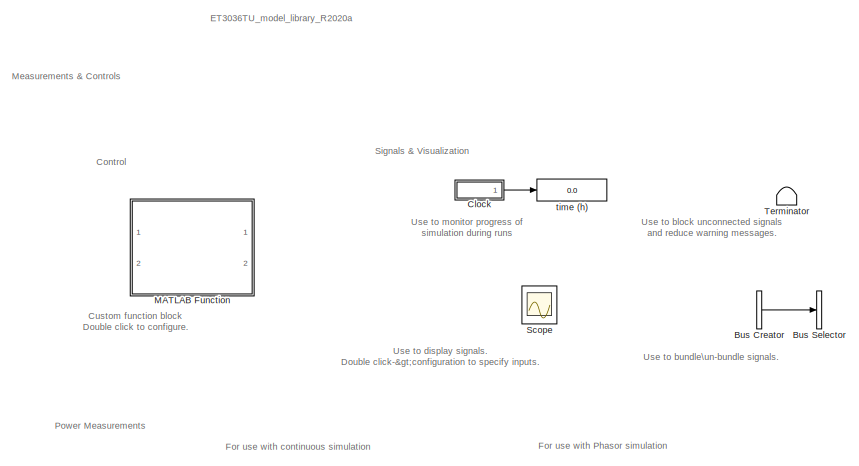
[diagram: root canvas - part 1/2, full width, top band]
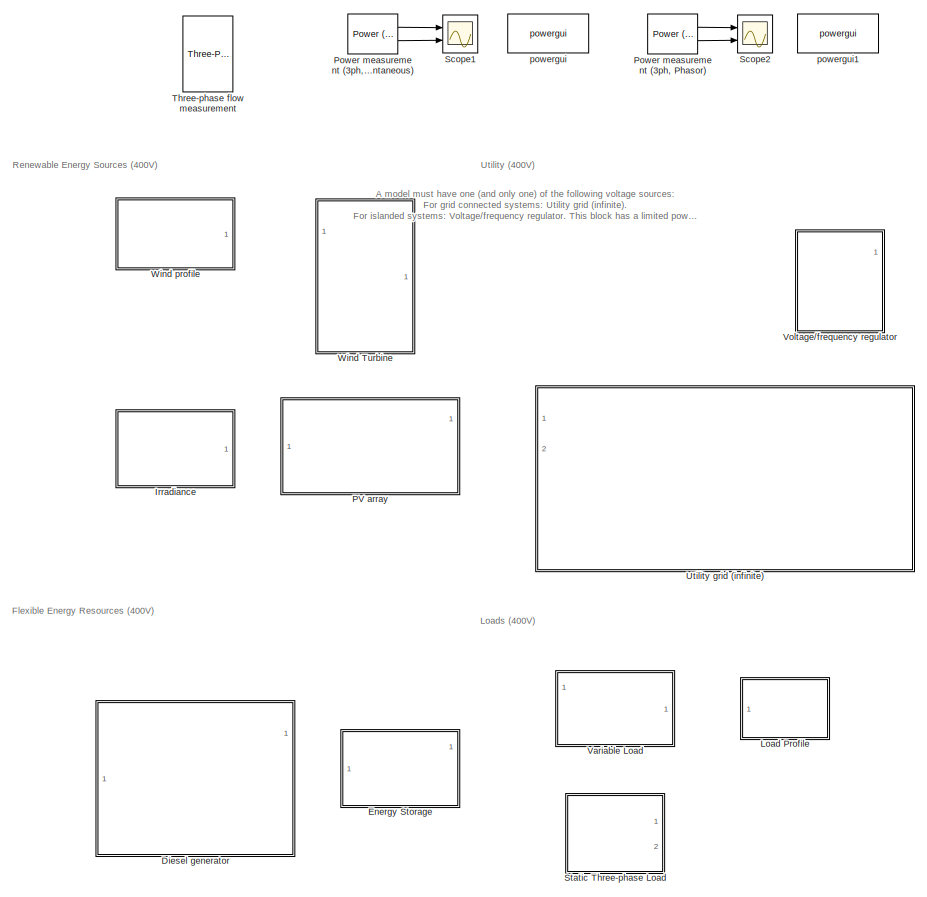
[diagram: root canvas - part 2/2, full width, bottom band]
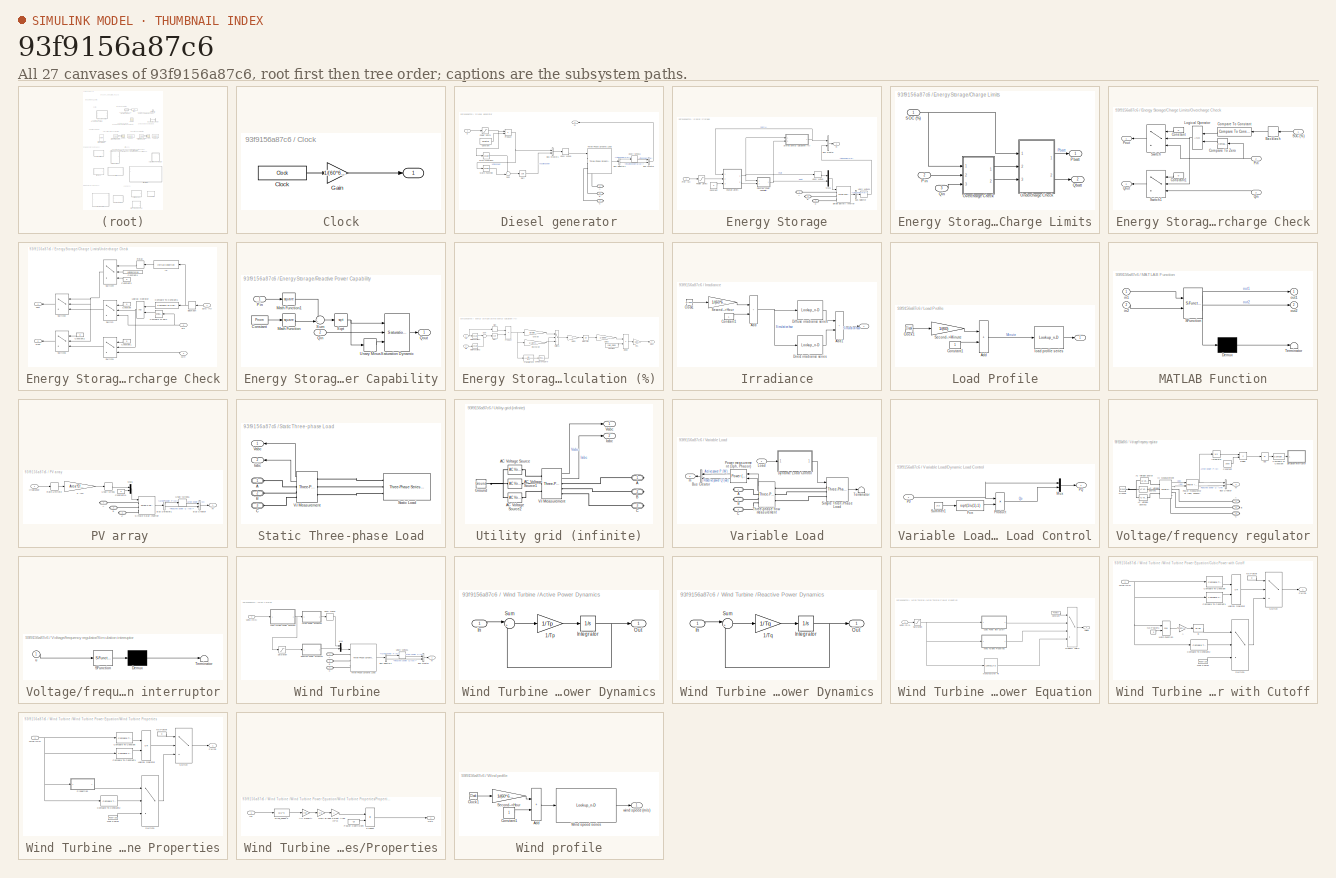
[diagram: thumbnail index - all 27 canvases of the model, root first then tree order]
MODEL slx_93f9156a87c6
KIND library
CONFIG AbsTol = auto
CONFIG EnableMultiTasking = off
CONFIG FixedStep = auto
CONFIG MaxStep = auto
CONFIG MinStep = auto
CONFIG RelTol = 1e-3
CONFIG SampleTimeConstraint = Unconstrained
CONFIG Solver = VariableStepAuto
CONFIG SolverName = VariableStepAuto
CONFIG StartTime = 0.0
CONFIG StopTime = 10.0
BLOCK [BusCreator] Bus Creator
  DisplayOption = bar
  InheritFromInputs = on
  Inputs = 2
  Ports = [2, 1]
BLOCK [BusSelector] Bus Selector
  OutputSignals = Active power P (W),Reactive power Q (var)
  Ports = [1, 2]
BLOCK [SubSystem] Clock
  Ports = [0, 1]
  RequestExecContextInheritance = off
BLOCK [Outport] Clock/ 
  VectorParamsAs1DForOutWhenUnconnected = off
BLOCK [Clock] Clock/Clock
  DisplayTime = on
BLOCK [Gain] Clock/Gain
  Gain = 1/(60*60)
BLOCK [SubSystem] Diesel generator
  Ports = [1, 1, 0, 0, 0, 0, 3]
  RequestExecContextInheritance = off
BLOCK [PMIOPort] Diesel generator/A
  Side = Right
BLOCK [PMIOPort] Diesel generator/B
  Port = 2
  Side = Right
BLOCK [BusCreator] Diesel generator/Bus Creator
  DisplayOption = bar
  InheritFromInputs = on
  Inputs = 2
  Ports = [2, 1]
BLOCK [BusCreator] Diesel generator/Bus Creator1
  DisplayOption = bar
  InheritFromInputs = on
  Inputs = 2
  NameLocation = top
  Ports = [2, 1]
BLOCK [BusSelector] Diesel generator/Bus Selector1
  OutputSignals = Active power P (W),Reactive power Q (var)
  Ports = [1, 2]
BLOCK [PMIOPort] Diesel generator/C
  Port = 3
  Side = Right
BLOCK [Constant] Diesel generator/Constant
  Value = Pfactor
BLOCK [Math] Diesel generator/Math Function
  Operator = square
  Ports = [1, 1]
  SignedPower = on
BLOCK [Math] Diesel generator/Math Function1
  Operator = square
  Ports = [1, 1]
  SignedPower = on
BLOCK [Saturate] Diesel generator/Power Limits
  LowerLimit = 0
  UpperLimit = Snom*1e6
BLOCK [Product] Diesel generator/Product
  Ports = [2, 1]
BLOCK [Inport] Diesel generator/S
BLOCK [Sqrt] Diesel generator/Sqrt
BLOCK [Sum] Diesel generator/Sum
  Inputs = +-|
  Ports = [2, 1]
BLOCK [Reference] Diesel generator/Three-Phase Dynamic Load  REF=powerlib/Elements/Three-Phase
Dynamic Load
  Ports = [1, 1, 0, 0, 0, 3]
  SourceBlock = powerlib/Elements/Three-Phase\nDynamic Load
  SourceProductBaseCode = PS
  SourceType = Three-Phase Dynamic Load
BLOCK [UnaryMinus] Diesel generator/Unary Minus
BLOCK [UnaryMinus] Diesel generator/Unary Minus1
BLOCK [Outport] Diesel generator/m
  NameLocation = top
  VectorParamsAs1DForOutWhenUnconnected = off
BLOCK [SubSystem] Energy Storage
  Ports = [1, 1, 0, 0, 0, 0, 3]
  RequestExecContextInheritance = off
BLOCK [PMIOPort] Energy Storage/A
  Side = Right
BLOCK [PMIOPort] Energy Storage/B
  Port = 2
  Side = Right
BLOCK [BusCreator] Energy Storage/Bus Creator
  DisplayOption = bar
  InheritFromInputs = on
  Inputs = 2
  Ports = [2, 1]
BLOCK [BusSelector] Energy Storage/Bus Selector
  OutputSignals = Active power P (W)
  Ports = [1, 1]
BLOCK [PMIOPort] Energy Storage/C
  Port = 3
  Side = Right
BLOCK [SubSystem] Energy Storage/Charge Limits
  Ports = [3, 2]
  RequestExecContextInheritance = off
BLOCK [SubSystem] Energy Storage/Charge Limits/Overcharge Check
  Ports = [3, 2]
  RequestExecContextInheritance = off
BLOCK [Backlash] Energy Storage/Charge Limits/Overcharge Check/Backlash
  BacklashWidth = 1e-3
  InitialOutput = Initial_kWh_pc
  ZeroCross = off
BLOCK [Reference] Energy Storage/Charge Limits/Overcharge Check/Compare To Constant  REF=simulink/Logic and Bit
Operations/Compare
To Constant
  NameLocation = top
  Ports = [1, 1]
  SourceBlock = simulink/Logic and Bit\nOperations/Compare\nTo Constant
  SourceProductBaseCode = SL
  SourceType = Compare To Constant
BLOCK [Reference] Energy Storage/Charge Limits/Overcharge Check/Compare To Zero  REF=simulink/Logic and Bit
Operations/Compare
To Zero
  Ports = [1, 1]
  SourceBlock = simulink/Logic and Bit\nOperations/Compare\nTo Zero
  SourceProductBaseCode = SL
  SourceType = Compare To Zero
BLOCK [Constant] Energy Storage/Charge Limits/Overcharge Check/Constant
  Value = 0
BLOCK [Constant] Energy Storage/Charge Limits/Overcharge Check/Constant1
  Value = 0
BLOCK [Logic] Energy Storage/Charge Limits/Overcharge Check/Logical Operator
  AllPortsSameDT = off
  OutDataTypeStr = boolean
  Ports = [2, 1]
BLOCK [Inport] Energy Storage/Charge Limits/Overcharge Check/Pin
  Port = 2
BLOCK [Outport] Energy Storage/Charge Limits/Overcharge Check/Pout
  NameLocation = top
  VectorParamsAs1DForOutWhenUnconnected = off
BLOCK [Inport] Energy Storage/Charge Limits/Overcharge Check/Qin
  Port = 3
BLOCK [Outport] Energy Storage/Charge Limits/Overcharge Check/Qout
  NameLocation = top
  Port = 2
  VectorParamsAs1DForOutWhenUnconnected = off
BLOCK [Inport] Energy Storage/Charge Limits/Overcharge Check/SOC (%)
  NameLocation = top
BLOCK [Switch] Energy Storage/Charge Limits/Overcharge Check/Switch
  Criteria = u2 ~= 0
  InputSameDT = off
  SaturateOnIntegerOverflow = off
BLOCK [Switch] Energy Storage/Charge Limits/Overcharge Check/Switch1
  Criteria = u2 ~= 0
  InputSameDT = off
  SaturateOnIntegerOverflow = off
BLOCK [Outport] Energy Storage/Charge Limits/Pbatt
  VectorParamsAs1DForOutWhenUnconnected = off
BLOCK [Inport] Energy Storage/Charge Limits/Pin
  Port = 2
BLOCK [Outport] Energy Storage/Charge Limits/Qbatt
  Port = 2
  VectorParamsAs1DForOutWhenUnconnected = off
BLOCK [Inport] Energy Storage/Charge Limits/Qin
  Port = 3
BLOCK [Inport] Energy Storage/Charge Limits/SOC (%)
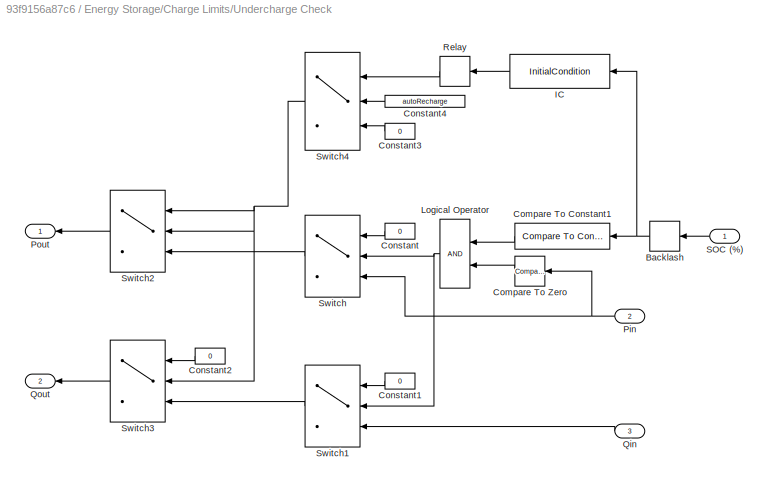
BLOCK [SubSystem] Energy Storage/Charge Limits/Undercharge Check
  Ports = [3, 2]
  RequestExecContextInheritance = off
BLOCK [Backlash] Energy Storage/Charge Limits/Undercharge Check/Backlash
  BacklashWidth = 1e-3
  InitialOutput = Initial_kWh_pc
  ZeroCross = off
BLOCK [Reference] Energy Storage/Charge Limits/Undercharge Check/Compare To Constant1  REF=simulink/Logic and Bit
Operations/Compare
To Constant
  Ports = [1, 1]
  SourceBlock = simulink/Logic and Bit\nOperations/Compare\nTo Constant
  SourceProductBaseCode = SL
  SourceType = Compare To Constant
BLOCK [Reference] Energy Storage/Charge Limits/Undercharge Check/Compare To Zero  REF=simulink/Logic and Bit
Operations/Compare
To Zero
  Ports = [1, 1]
  SourceBlock = simulink/Logic and Bit\nOperations/Compare\nTo Zero
  SourceProductBaseCode = SL
  SourceType = Compare To Zero
BLOCK [Constant] Energy Storage/Charge Limits/Undercharge Check/Constant
  Value = 0
BLOCK [Constant] Energy Storage/Charge Limits/Undercharge Check/Constant1
  Value = 0
BLOCK [Constant] Energy Storage/Charge Limits/Undercharge Check/Constant2
  Value = 0
BLOCK [Constant] Energy Storage/Charge Limits/Undercharge Check/Constant3
  Value = 0
BLOCK [Constant] Energy Storage/Charge Limits/Undercharge Check/Constant4
  Value = autoRecharge
BLOCK [InitialCondition] Energy Storage/Charge Limits/Undercharge Check/IC
  Value = RechargeSOC
BLOCK [Logic] Energy Storage/Charge Limits/Undercharge Check/Logical Operator
  AllPortsSameDT = off
  OutDataTypeStr = boolean
  Ports = [2, 1]
BLOCK [Inport] Energy Storage/Charge Limits/Undercharge Check/Pin
  Port = 2
BLOCK [Outport] Energy Storage/Charge Limits/Undercharge Check/Pout
  NameLocation = top
  VectorParamsAs1DForOutWhenUnconnected = off
BLOCK [Inport] Energy Storage/Charge Limits/Undercharge Check/Qin
  Port = 3
BLOCK [Outport] Energy Storage/Charge Limits/Undercharge Check/Qout
  NameLocation = top
  Port = 2
  VectorParamsAs1DForOutWhenUnconnected = off
BLOCK [Relay] Energy Storage/Charge Limits/Undercharge Check/Relay
  OffOutputValue = -Precharge/100*Pnom
  OffSwitchValue = LowChrgLim
  OnOutputValue = 0
  OnSwitchValue = RechargeSOC
BLOCK [Inport] Energy Storage/Charge Limits/Undercharge Check/SOC (%)
  NameLocation = top
BLOCK [Switch] Energy Storage/Charge Limits/Undercharge Check/Switch
  Criteria = u2 ~= 0
  InputSameDT = off
  SaturateOnIntegerOverflow = off
BLOCK [Switch] Energy Storage/Charge Limits/Undercharge Check/Switch1
  Criteria = u2 ~= 0
  InputSameDT = off
  SaturateOnIntegerOverflow = off
BLOCK [Switch] Energy Storage/Charge Limits/Undercharge Check/Switch2
  Criteria = u2 ~= 0
  InputSameDT = off
  SaturateOnIntegerOverflow = off
BLOCK [Switch] Energy Storage/Charge Limits/Undercharge Check/Switch3
  Criteria = u2 ~= 0
  InputSameDT = off
  SaturateOnIntegerOverflow = off
BLOCK [Switch] Energy Storage/Charge Limits/Undercharge Check/Switch4
  Criteria = u2 ~= 0
  InputSameDT = off
  SaturateOnIntegerOverflow = off
BLOCK [Constant] Energy Storage/Constant
  Value = 0
BLOCK [Mux] Energy Storage/Mux1
  DisplayOption = bar
  Inputs = 2
  Ports = [2, 1]
BLOCK [Saturate] Energy Storage/Power Limits
  LowerLimit = -Pnom
  UpperLimit = Pnom
BLOCK [Inport] Energy Storage/Pref (W)
BLOCK [SubSystem] Energy Storage/Reactive Power Capability
  Ports = [2, 1]
  RequestExecContextInheritance = off
BLOCK [Constant] Energy Storage/Reactive Power Capability/Constant
  Value = Pnom
BLOCK [Math] Energy Storage/Reactive Power Capability/Math Function
  Operator = square
  Ports = [1, 1]
  SignedPower = on
BLOCK [Math] Energy Storage/Reactive Power Capability/Math Function1
  Operator = square
  Ports = [1, 1]
  SignedPower = on
BLOCK [Inport] Energy Storage/Reactive Power Capability/Pin
BLOCK [Inport] Energy Storage/Reactive Power Capability/Qin
  Port = 2
BLOCK [Outport] Energy Storage/Reactive Power Capability/Qout
  VectorParamsAs1DForOutWhenUnconnected = off
BLOCK [Reference] Energy Storage/Reactive Power Capability/Saturation Dynamic  REF=simulink/Discontinuities/Saturation
Dynamic
  Ports = [3, 1]
  SourceBlock = simulink/Discontinuities/Saturation\nDynamic
  SourceProductBaseCode = SL
  SourceType = Saturation Dynamic
BLOCK [Sqrt] Energy Storage/Reactive Power Capability/Sqrt
BLOCK [Sum] Energy Storage/Reactive Power Capability/Sum
  Inputs = -+|
  Ports = [2, 1]
BLOCK [UnaryMinus] Energy Storage/Reactive Power Capability/Unary Minus
BLOCK [Reference] Energy Storage/Simple Battery Inverter  REF=powerlib/Elements/Three-Phase
Dynamic Load
  Ports = [1, 1, 0, 0, 0, 3]
  SourceBlock = powerlib/Elements/Three-Phase\nDynamic Load
  SourceProductBaseCode = PS
  SourceType = Three-Phase Dynamic Load
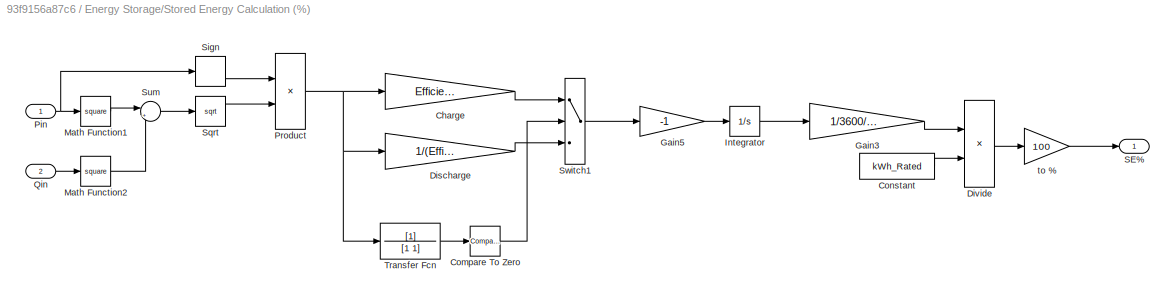
BLOCK [SubSystem] Energy Storage/Stored Energy Calculation (%)
  Ports = [2, 1]
  RequestExecContextInheritance = off
BLOCK [Gain] Energy Storage/Stored Energy Calculation (%)/Charge
  Gain = Efficiency/100
BLOCK [Reference] Energy Storage/Stored Energy Calculation (%)/Compare To Zero  REF=simulink/Logic and Bit
Operations/Compare
To Zero
  Ports = [1, 1]
  SourceBlock = simulink/Logic and Bit\nOperations/Compare\nTo Zero
  SourceProductBaseCode = SL
  SourceType = Compare To Zero
BLOCK [Constant] Energy Storage/Stored Energy Calculation (%)/Constant
  Value = kWh_Rated
BLOCK [Gain] Energy Storage/Stored Energy Calculation (%)/Discharge
  Gain = 1/(Efficiency/100)
BLOCK [Product] Energy Storage/Stored Energy Calculation (%)/Divide
  Inputs = */
  Ports = [2, 1]
BLOCK [Gain] Energy Storage/Stored Energy Calculation (%)/Gain3
  Gain = 1/3600/1e3
BLOCK [Gain] Energy Storage/Stored Energy Calculation (%)/Gain5
  Gain = -1
BLOCK [Integrator] Energy Storage/Stored Energy Calculation (%)/Integrator
  InitialCondition = (Initial_kWh_pc/100)*kWh_Rated*3600*1e3
  Ports = [1, 1]
BLOCK [Math] Energy Storage/Stored Energy Calculation (%)/Math Function1
  Operator = square
  Ports = [1, 1]
  SignedPower = on
BLOCK [Math] Energy Storage/Stored Energy Calculation (%)/Math Function2
  Operator = square
  Ports = [1, 1]
  SignedPower = on
BLOCK [Inport] Energy Storage/Stored Energy Calculation (%)/Pin
BLOCK [Product] Energy Storage/Stored Energy Calculation (%)/Product
  Ports = [2, 1]
BLOCK [Inport] Energy Storage/Stored Energy Calculation (%)/Qin
  Port = 2
BLOCK [Outport] Energy Storage/Stored Energy Calculation (%)/SE%
  VectorParamsAs1DForOutWhenUnconnected = off
BLOCK [Signum] Energy Storage/Stored Energy Calculation (%)/Sign
BLOCK [Sqrt] Energy Storage/Stored Energy Calculation (%)/Sqrt
BLOCK [Sum] Energy Storage/Stored Energy Calculation (%)/Sum
  Inputs = |++
  Ports = [2, 1]
BLOCK [Switch] Energy Storage/Stored Energy Calculation (%)/Switch1
  Criteria = u2 ~= 0
  InputSameDT = off
  SaturateOnIntegerOverflow = off
BLOCK [TransferFcn] Energy Storage/Stored Energy Calculation (%)/Transfer Fcn
  Denominator = [1 1]
BLOCK [Gain] Energy Storage/Stored Energy Calculation (%)/to %
  Gain = 100
  NameLocation = top
BLOCK [UnaryMinus] Energy Storage/Unary Minus
BLOCK [UnaryMinus] Energy Storage/Unary Minus1
BLOCK [Outport] Energy Storage/m
  VectorParamsAs1DForOutWhenUnconnected = off
BLOCK [SubSystem] Irradiance
  NameLocation = top
  Ports = [0, 1]
  RequestExecContextInheritance = off
BLOCK [Outport] Irradiance/ 
  NameLocation = top
  VectorParamsAs1DForOutWhenUnconnected = off
BLOCK [Sum] Irradiance/Add
  IconShape = rectangular
  Ports = [2, 1]
BLOCK [Sum] Irradiance/Add1
  IconShape = rectangular
  Ports = [2, 1]
BLOCK [Clock] Irradiance/Clock1
  Decimation = 1
BLOCK [Constant] Irradiance/Constant1
BLOCK [Lookup_n-D] Irradiance/Diffuse irradiance series
  BeginIndexSearchUsingPreviousIndexResult = on
  BreakpointsForDimension1 = Data.solar.hour
  InternalRulePriority = Speed
  NameLocation = top
  NumberOfTableDimensions = 1
  Ports = [1, 1]
  RndMeth = Simplest
  Table = Data.solar.diffuse
BLOCK [Lookup_n-D] Irradiance/Direct irradiance series
  BeginIndexSearchUsingPreviousIndexResult = on
  BreakpointsForDimension1 = Data.solar.hour
  InternalRulePriority = Speed
  NameLocation = top
  NumberOfTableDimensions = 1
  Ports = [1, 1]
  RndMeth = Simplest
  Table = Data.solar.direct
BLOCK [Gain] Irradiance/Second-->Hour
  Gain = 1/(60*60)
  NameLocation = top
BLOCK [SubSystem] Load Profile
  Ports = [0, 1]
  RequestExecContextInheritance = off
BLOCK [Outport] Load Profile/ 
  NameLocation = top
  VectorParamsAs1DForOutWhenUnconnected = off
BLOCK [Sum] Load Profile/Add
  IconShape = rectangular
  Ports = [2, 1]
BLOCK [Clock] Load Profile/Clock1
  Decimation = 1
BLOCK [Constant] Load Profile/Constant1
BLOCK [Gain] Load Profile/Second-->Minute
  Gain = 1/(60)
  NameLocation = top
BLOCK [Lookup_n-D] Load Profile/load profile series
  BeginIndexSearchUsingPreviousIndexResult = on
  BreakpointsForDimension1 = Data.varload.minute
  InternalRulePriority = Speed
  NameLocation = top
  NumberOfTableDimensions = 1
  Ports = [1, 1]
  RndMeth = Simplest
  Table = Data.varload.load
BLOCK [SubSystem] MATLAB Function
  ErrorFcn = Stateflow.Translate.translate
  PermitHierarchicalResolution = ExplicitOnly
  Ports = [2, 2]
  RequestExecContextInheritance = off
  SFBlockType = MATLAB Function
  TreatAsAtomicUnit = on
BLOCK [Demux] MATLAB Function/ Demux 
  Outputs = 1
  Ports = [1, 1]
BLOCK [S-Function] MATLAB Function/ SFunction 
  EnableBusSupport = off
  FunctionName = sf_sfun
  PortCounts = [2 3]
  Ports = [2, 3]
  SFcnIsStateOwnerBlock = off
  SFunctionDeploymentMode = off
  Tag = Stateflow S-Function 2
BLOCK [Terminator] MATLAB Function/ Terminator 
BLOCK [Inport] MATLAB Function/in1
BLOCK [Inport] MATLAB Function/in2
  Port = 2
BLOCK [Outport] MATLAB Function/out1
  VectorParamsAs1DForOutWhenUnconnected = off
BLOCK [Outport] MATLAB Function/out2
  Port = 2
  VectorParamsAs1DForOutWhenUnconnected = off
BLOCK [SubSystem] PV array 
  Ports = [1, 1, 0, 0, 0, 0, 3]
  RequestExecContextInheritance = off
BLOCK [PMIOPort] PV array /A
  Side = Right
BLOCK [PMIOPort] PV array /B
  Port = 2
  Side = Right
BLOCK [BusCreator] PV array /Bus Creator
  DisplayOption = bar
  InheritFromInputs = on
  Inputs = 2
  Ports = [2, 1]
BLOCK [BusSelector] PV array /Bus Selector1
  OutputSignals = Active power P (W),Reactive power Q (var)
  Ports = [1, 2]
BLOCK [PMIOPort] PV array /C
  Port = 3
  Side = Right
BLOCK [Constant] PV array /Constant11
  Value = 0
BLOCK [Inport] PV array /Irradiance
BLOCK [Mux] PV array /Mux1
  DisplayOption = bar
  Inputs = 2
  Ports = [2, 1]
BLOCK [Gain] PV array /P (W)
  Gain = Area*Efficiency
BLOCK [RateLimiter] PV array /Rate Limiter2
  FallingSlewLimit = -1e4
  RisingSlewLimit = 1e4
  SampleTimeMode = inherited
BLOCK [Reference] PV array /Simple Solar Inverter  REF=powerlib/Elements/Three-Phase
Dynamic Load
  Ports = [1, 1, 0, 0, 0, 3]
  SourceBlock = powerlib/Elements/Three-Phase\nDynamic Load
  SourceProductBaseCode = PS
  SourceType = Three-Phase Dynamic Load
BLOCK [UnaryMinus] PV array /Unary Minus
BLOCK [UnaryMinus] PV array /Unary Minus1
BLOCK [Outport] PV array /m
  VectorParamsAs1DForOutWhenUnconnected = off
BLOCK [Reference] Power measurement (3ph, Instantaneous)  REF=powerlib_meascontrol/Measurements/Power
(3ph, Instantaneous)
  Ports = [2, 2]
  SourceBlock = powerlib_meascontrol/Measurements/Power\n(3ph, Instantaneous)
  SourceProductBaseCode = PS
  SourceType = Power (3ph, Instantaneous)
BLOCK [Reference] Power measurement (3ph, Phasor)  REF=powerlib_meascontrol/Measurements/Power
(3ph, Phasor)
  Ports = [2, 2]
  SourceBlock = powerlib_meascontrol/Measurements/Power\n(3ph, Phasor)
  SourceProductBaseCode = PS
  SourceType = Power (3ph, Phasor)
BLOCK [Scope] Scope
  Floating = off
  NumInputPorts = 2
  Ports = [2]
  ScopeSpecificationString = Simulink.scopes.TimeScopeBlockCfg('CurrentConfiguration', extmgr.ConfigurationSet(extmgr.Configuration('Core','General UI',true),extmgr.Configuration('Core','Source UI',true),extmgr.Configuration('Sources','WiredSimulink',true,'DataLoggingVariableName','ScopeData2'),extmgr.Configuration('Visuals','Time Domain',true,'SerializedDisplays',{struct('MinYLimReal','-613968.135','MaxYLimReal','5525713.214...<+1470ch>
BLOCK [Scope] Scope1
  Floating = off
  NumInputPorts = 2
  Ports = [2]
  ScopeSpecificationString = Simulink.scopes.TimeScopeBlockCfg('CurrentConfiguration', extmgr.ConfigurationSet(extmgr.Configuration('Core','General UI',true),extmgr.Configuration('Core','Source UI',true),extmgr.Configuration('Sources','WiredSimulink',true,'DataLoggingVariableName','ScopeData1'),extmgr.Configuration('Visuals','Time Domain',true,'SerializedDisplays',{struct('MinYLimReal','-613968.135','MaxYLimReal','5525713.214...<+1470ch>
BLOCK [Scope] Scope2
  Floating = off
  NumInputPorts = 2
  Ports = [2]
  ScopeSpecificationString = Simulink.scopes.TimeScopeBlockCfg('CurrentConfiguration', extmgr.ConfigurationSet(extmgr.Configuration('Core','General UI',true),extmgr.Configuration('Core','Source UI',true),extmgr.Configuration('Sources','WiredSimulink',true,'DataLoggingVariableName','ScopeData2'),extmgr.Configuration('Visuals','Time Domain',true,'SerializedDisplays',{struct('MinYLimReal','-613968.135','MaxYLimReal','5525713.214...<+1470ch>
BLOCK [SubSystem] Static Three-phase Load
  Ports = [0, 2, 0, 0, 0, 3]
  RequestExecContextInheritance = off
BLOCK [PMIOPort] Static Three-phase Load/A
  Side = Left
BLOCK [PMIOPort] Static Three-phase Load/B
  Port = 2
  Side = Left
BLOCK [PMIOPort] Static Three-phase Load/C
  Port = 3
  Side = Left
BLOCK [Outport] Static Three-phase Load/Iabc
  Port = 2
  VectorParamsAs1DForOutWhenUnconnected = off
BLOCK [Reference] Static Three-phase Load/Static Load  REF=powerlib/Elements/Three-Phase
Series RLC Load
  Ports = [0, 0, 0, 0, 0, 3]
  SourceBlock = powerlib/Elements/Three-Phase\nSeries RLC Load
  SourceProductBaseCode = PS
  SourceType = Three-Phase Series RLC Load
BLOCK [Reference] Static Three-phase Load/V-I Measurement  REF=powerlib/Measurements/Three-Phase
V-I Measurement
  NameLocation = top
  Ports = [0, 2, 0, 0, 0, 3, 3]
  SourceBlock = powerlib/Measurements/Three-Phase\nV-I Measurement
  SourceProductBaseCode = PS
  SourceType = Three-Phase VI Measurement
BLOCK [Outport] Static Three-phase Load/Vabc
  VectorParamsAs1DForOutWhenUnconnected = off
BLOCK [Terminator] Terminator
BLOCK [Reference] Three-phase flow measurement  REF=powerlib/Measurements/Three-Phase
V-I Measurement
  Ports = [0, 2, 0, 0, 0, 3, 3]
  SourceBlock = powerlib/Measurements/Three-Phase\nV-I Measurement
  SourceProductBaseCode = PS
  SourceType = Three-Phase VI Measurement
BLOCK [SubSystem] Utility grid (infinite)
  Ports = [0, 2, 0, 0, 0, 0, 3]
  RequestExecContextInheritance = off
BLOCK [PMIOPort] Utility grid (infinite)/A
  Side = Right
BLOCK [Reference] Utility grid (infinite)/AC Voltage Source  REF=powerlib/Electrical
Sources/AC Voltage Source
  Ports = [0, 0, 0, 0, 0, 1, 1]
  SourceBlock = powerlib/Electrical\nSources/AC Voltage Source
  SourceProductBaseCode = PS
  SourceType = AC Voltage Source
BLOCK [Reference] Utility grid (infinite)/AC Voltage Source1  REF=powerlib/Electrical
Sources/AC Voltage Source
  Ports = [0, 0, 0, 0, 0, 1, 1]
  SourceBlock = powerlib/Electrical\nSources/AC Voltage Source
  SourceProductBaseCode = PS
  SourceType = AC Voltage Source
BLOCK [Reference] Utility grid (infinite)/AC Voltage Source2  REF=powerlib/Electrical
Sources/AC Voltage Source
  Ports = [0, 0, 0, 0, 0, 1, 1]
  SourceBlock = powerlib/Electrical\nSources/AC Voltage Source
  SourceProductBaseCode = PS
  SourceType = AC Voltage Source
BLOCK [PMIOPort] Utility grid (infinite)/B
  Port = 2
  Side = Right
BLOCK [PMIOPort] Utility grid (infinite)/C
  Port = 3
  Side = Right
BLOCK [Reference] Utility grid (infinite)/Ground  REF=powerlib/Elements/Ground
  Ports = [0, 0, 0, 0, 0, 1]
  SourceBlock = powerlib/Elements/Ground
  SourceProductBaseCode = PS
  SourceType = Ground
BLOCK [Outport] Utility grid (infinite)/Iabc
  Port = 2
  VectorParamsAs1DForOutWhenUnconnected = off
BLOCK [Reference] Utility grid (infinite)/V-I Measurement  REF=powerlib/Measurements/Three-Phase
V-I Measurement
  Ports = [0, 2, 0, 0, 0, 3, 3]
  SourceBlock = powerlib/Measurements/Three-Phase\nV-I Measurement
  SourceProductBaseCode = PS
  SourceType = Three-Phase VI Measurement
BLOCK [Outport] Utility grid (infinite)/Vabc
  VectorParamsAs1DForOutWhenUnconnected = off
BLOCK [SubSystem] Variable Load
  Ports = [1, 1, 0, 0, 0, 0, 3]
  RequestExecContextInheritance = off
BLOCK [PMIOPort] Variable Load/A
  Side = Right
BLOCK [PMIOPort] Variable Load/B
  Port = 2
  Side = Right
BLOCK [BusCreator] Variable Load/Bus Creator
  DisplayOption = bar
  InheritFromInputs = on
  Inputs = 2
  NameLocation = top
  Ports = [2, 1]
BLOCK [PMIOPort] Variable Load/C
  Port = 3
  Side = Right
BLOCK [SubSystem] Variable Load/Dynamic Load Control
  Ports = [1, 1]
  RequestExecContextInheritance = off
BLOCK [Fcn] Variable Load/Dynamic Load Control/Fcn
  Expr = sqrt(1/u(1)-1)
BLOCK [Mux] Variable Load/Dynamic Load Control/Mux
  DisplayOption = bar
  Inputs = 2
  Ports = [2, 1]
BLOCK [Inport] Variable Load/Dynamic Load Control/P0
BLOCK [Outport] Variable Load/Dynamic Load Control/PQ
  VectorParamsAs1DForOutWhenUnconnected = off
BLOCK [Product] Variable Load/Dynamic Load Control/Product
  Ports = [2, 1]
BLOCK [Constant] Variable Load/Dynamic Load Control/Summer1
  NameLocation = top
  Value = PF
BLOCK [Inport] Variable Load/Load
  NameLocation = top
BLOCK [Reference] Variable Load/Power measurement (3ph, Phasor)  REF=powerlib_meascontrol/Measurements/Power
(3ph, Phasor)
  Ports = [2, 2]
  SourceBlock = powerlib_meascontrol/Measurements/Power\n(3ph, Phasor)
  SourceProductBaseCode = PS
  SourceType = Power (3ph, Phasor)
BLOCK [Reference] Variable Load/Simple Three-Phase Load  REF=powerlib/Elements/Three-Phase
Dynamic Load
  Ports = [1, 1, 0, 0, 0, 3]
  SourceBlock = powerlib/Elements/Three-Phase\nDynamic Load
  SourceProductBaseCode = PS
  SourceType = Three-Phase Dynamic Load
BLOCK [Terminator] Variable Load/Terminator
BLOCK [Reference] Variable Load/Three-phase flow measurement  REF=powerlib/Measurements/Three-Phase
V-I Measurement
  Ports = [0, 2, 0, 0, 0, 3, 3]
  SourceBlock = powerlib/Measurements/Three-Phase\nV-I Measurement
  SourceProductBaseCode = PS
  SourceType = Three-Phase VI Measurement
BLOCK [Outport] Variable Load/m
  NameLocation = top
  VectorParamsAs1DForOutWhenUnconnected = off
BLOCK [SubSystem] Voltage//frequency regulator
  Ports = [0, 1, 0, 0, 0, 0, 3]
  RequestExecContextInheritance = off
BLOCK [PMIOPort] Voltage//frequency regulator/A
  Side = Right
BLOCK [Reference] Voltage//frequency regulator/AC Voltage Source  REF=powerlib/Electrical
Sources/AC Voltage Source
  Ports = [0, 0, 0, 0, 0, 1, 1]
  SourceBlock = powerlib/Electrical\nSources/AC Voltage Source
  SourceProductBaseCode = PS
  SourceType = AC Voltage Source
BLOCK [Reference] Voltage//frequency regulator/AC Voltage Source1  REF=powerlib/Electrical
Sources/AC Voltage Source
  Ports = [0, 0, 0, 0, 0, 1, 1]
  SourceBlock = powerlib/Electrical\nSources/AC Voltage Source
  SourceProductBaseCode = PS
  SourceType = AC Voltage Source
BLOCK [Reference] Voltage//frequency regulator/AC Voltage Source2  REF=powerlib/Electrical
Sources/AC Voltage Source
  Ports = [0, 0, 0, 0, 0, 1, 1]
  SourceBlock = powerlib/Electrical\nSources/AC Voltage Source
  SourceProductBaseCode = PS
  SourceType = AC Voltage Source
BLOCK [Abs] Voltage//frequency regulator/Abs
  SaturateOnIntegerOverflow = off
BLOCK [PMIOPort] Voltage//frequency regulator/B
  Port = 2
  Side = Right
BLOCK [BusCreator] Voltage//frequency regulator/Bus Creator
  DisplayOption = bar
  InheritFromInputs = on
  Inputs = 2
  Ports = [2, 1]
BLOCK [PMIOPort] Voltage//frequency regulator/C
  Port = 3
  Side = Right
BLOCK [Reference] Voltage//frequency regulator/Compare To Constant  REF=simulink/Logic and Bit
Operations/Compare
To Constant
  Ports = [1, 1]
  SourceBlock = simulink/Logic and Bit\nOperations/Compare\nTo Constant
  SourceProductBaseCode = SL
  SourceType = Compare To Constant
BLOCK [Constant] Voltage//frequency regulator/Constant
  Value = 3600
BLOCK [Product] Voltage//frequency regulator/Divide
  Inputs = */
  Ports = [2, 1]
BLOCK [Reference] Voltage//frequency regulator/Ground  REF=powerlib/Elements/Ground
  Ports = [0, 0, 0, 0, 0, 1]
  SourceBlock = powerlib/Elements/Ground
  SourceProductBaseCode = PS
  SourceType = Ground
BLOCK [Integrator] Voltage//frequency regulator/Integrator
  Ports = [1, 1]
BLOCK [Reference] Voltage//frequency regulator/Power measurement (3ph, Phasor)  REF=powerlib_meascontrol/Measurements/Power
(3ph, Phasor)
  Ports = [2, 2]
  SourceBlock = powerlib_meascontrol/Measurements/Power\n(3ph, Phasor)
  SourceProductBaseCode = PS
  SourceType = Power (3ph, Phasor)
BLOCK [SubSystem] Voltage//frequency regulator/Simulation interruptor
  ErrorFcn = Stateflow.Translate.translate
  PermitHierarchicalResolution = ExplicitOnly
  Ports = [1]
  RequestExecContextInheritance = off
  SFBlockType = MATLAB Function
  TreatAsAtomicUnit = on
BLOCK [Demux] Voltage//frequency regulator/Simulation interruptor/ Demux 
  Outputs = 1
  Ports = [1, 1]
BLOCK [S-Function] Voltage//frequency regulator/Simulation interruptor/ SFunction 
  EnableBusSupport = off
  FunctionName = sf_sfun
  PortCounts = [1 1]
  Ports = [1, 1]
  SFcnIsStateOwnerBlock = off
  SFunctionDeploymentMode = off
  Tag = Stateflow S-Function 1
BLOCK [Terminator] Voltage//frequency regulator/Simulation interruptor/ Terminator 
BLOCK [Inport] Voltage//frequency regulator/Simulation interruptor/u
BLOCK [Reference] Voltage//frequency regulator/V-I Measurement  REF=powerlib/Measurements/Three-Phase
V-I Measurement
  Ports = [0, 2, 0, 0, 0, 3, 3]
  SourceBlock = powerlib/Measurements/Three-Phase\nV-I Measurement
  SourceProductBaseCode = PS
  SourceType = Three-Phase VI Measurement
BLOCK [Outport] Voltage//frequency regulator/m
BLOCK [SubSystem] Wind Turbine 
  Ports = [1, 1, 0, 0, 0, 3]
  RequestExecContextInheritance = off
BLOCK [PMIOPort] Wind Turbine /A
  Side = Left
BLOCK [SubSystem] Wind Turbine /Active Power Dynamics
  NameLocation = top
  Ports = [1, 1]
  RequestExecContextInheritance = off
  VariantControl = T6NotZero
BLOCK [Gain] Wind Turbine /Active Power Dynamics/1//Tp
  Gain = 1/Tp
  NameLocation = top
BLOCK [Inport] Wind Turbine /Active Power Dynamics/In
BLOCK [Integrator] Wind Turbine /Active Power Dynamics/Integrator
  Ports = [1, 1]
BLOCK [Outport] Wind Turbine /Active Power Dynamics/Out
  VectorParamsAs1DForOutWhenUnconnected = off
BLOCK [Sum] Wind Turbine /Active Power Dynamics/Sum
  Inputs = |+-
  Ports = [2, 1]
BLOCK [PMIOPort] Wind Turbine /B
  Port = 2
  Side = Left
BLOCK [BusCreator] Wind Turbine /Bus Creator
  DisplayOption = bar
  InheritFromInputs = on
  Inputs = 2
  Ports = [2, 1]
BLOCK [BusSelector] Wind Turbine /Bus Selector1
  OutputSignals = Active power P (W),Reactive power Q (var)
  Ports = [1, 2]
BLOCK [PMIOPort] Wind Turbine /C
  Port = 3
  Side = Left
BLOCK [Mux] Wind Turbine /Mux
  DisplayOption = bar
  Inputs = 2
  Ports = [2, 1]
BLOCK [SubSystem] Wind Turbine /Reactive Power Dynamics
  NameLocation = top
  Ports = [1, 1]
  RequestExecContextInheritance = off
  VariantControl = T6NotZero
BLOCK [Gain] Wind Turbine /Reactive Power Dynamics/1//Tq
  Gain = 1/Tq
  NameLocation = top
BLOCK [Inport] Wind Turbine /Reactive Power Dynamics/In
BLOCK [Integrator] Wind Turbine /Reactive Power Dynamics/Integrator
  Ports = [1, 1]
BLOCK [Outport] Wind Turbine /Reactive Power Dynamics/Out
  VectorParamsAs1DForOutWhenUnconnected = off
BLOCK [Sum] Wind Turbine /Reactive Power Dynamics/Sum
  Inputs = |+-
  Ports = [2, 1]
BLOCK [Saturate] Wind Turbine /Saturation
  LowerLimit = -Qmax
  UpperLimit = Qmax
BLOCK [Reference] Wind Turbine /Three-Phase Dynamic Load  REF=powerlib/Elements/Three-Phase
Dynamic Load
  Ports = [1, 1, 0, 0, 0, 3]
  SourceBlock = powerlib/Elements/Three-Phase\nDynamic Load
  SourceProductBaseCode = PS
  SourceType = Three-Phase Dynamic Load
BLOCK [UnaryMinus] Wind Turbine /Unary Minus
BLOCK [UnaryMinus] Wind Turbine /Unary Minus1
BLOCK [Inport] Wind Turbine /Wind (m//s)
BLOCK [SubSystem] Wind Turbine /Wind Turbine Power Equation
  Ports = [1, 1]
  RequestExecContextInheritance = off
BLOCK [Constant] Wind Turbine /Wind Turbine Power Equation/Constant
  Value = Pselect
BLOCK [SubSystem] Wind Turbine /Wind Turbine Power Equation/Cubic Power with Cutoff
  Ports = [1, 1]
  RequestExecContextInheritance = off
BLOCK [Gain] Wind Turbine /Wind Turbine Power Equation/Cubic Power with Cutoff/A
  Gain = (Pnom*1e3)/(Unom^3 - Umin^3)
BLOCK [Bias] Wind Turbine /Wind Turbine Power Equation/Cubic Power with Cutoff/B
  Bias = -(Pnom*1e3)/(Unom^3 - Umin^3)*Umin^3
  SaturateOnIntegerOverflow = off
BLOCK [Reference] Wind Turbine /Wind Turbine Power Equation/Cubic Power with Cutoff/Compare To Constant  REF=simulink/Logic and Bit
Operations/Compare
To Constant
  Ports = [1, 1]
  SourceBlock = simulink/Logic and Bit\nOperations/Compare\nTo Constant
  SourceProductBaseCode = SL
  SourceType = Compare To Constant
BLOCK [Reference] Wind Turbine /Wind Turbine Power Equation/Cubic Power with Cutoff/Compare To Constant1  REF=simulink/Logic and Bit
Operations/Compare
To Constant
  Ports = [1, 1]
  SourceBlock = simulink/Logic and Bit\nOperations/Compare\nTo Constant
  SourceProductBaseCode = SL
  SourceType = Compare To Constant
BLOCK [Reference] Wind Turbine /Wind Turbine Power Equation/Cubic Power with Cutoff/Compare To Constant2  REF=simulink/Logic and Bit
Operations/Compare
To Constant
  Ports = [1, 1]
  SourceBlock = simulink/Logic and Bit\nOperations/Compare\nTo Constant
  SourceProductBaseCode = SL
  SourceType = Compare To Constant
BLOCK [Logic] Wind Turbine /Wind Turbine Power Equation/Cubic Power with Cutoff/Logical Operator
  AllPortsSameDT = off
  Operator = OR
  OutDataTypeStr = boolean
  Ports = [2, 1]
BLOCK [Math] Wind Turbine /Wind Turbine Power Equation/Cubic Power with Cutoff/Math Function
  Operator = pow
  Ports = [2, 1]
  SignedPower = on
BLOCK [Constant] Wind Turbine /Wind Turbine Power Equation/Cubic Power with Cutoff/Max Power
  NameLocation = top
  Value = Pnom*1e3
BLOCK [Constant] Wind Turbine /Wind Turbine Power Equation/Cubic Power with Cutoff/No Power
  NameLocation = top
  Value = 0
BLOCK [Constant] Wind Turbine /Wind Turbine Power Equation/Cubic Power with Cutoff/No Power1
  NameLocation = top
  Value = 3
BLOCK [Outport] Wind Turbine /Wind Turbine Power Equation/Cubic Power with Cutoff/Pwind
  VectorParamsAs1DForOutWhenUnconnected = off
BLOCK [Switch] Wind Turbine /Wind Turbine Power Equation/Cubic Power with Cutoff/Switch
  Criteria = u2 ~= 0
  InputSameDT = off
  SaturateOnIntegerOverflow = off
  ZeroCross = off
BLOCK [Switch] Wind Turbine /Wind Turbine Power Equation/Cubic Power with Cutoff/Switch1
  Criteria = u2 ~= 0
  InputSameDT = off
  SaturateOnIntegerOverflow = off
  ZeroCross = off
BLOCK [Inport] Wind Turbine /Wind Turbine Power Equation/Cubic Power with Cutoff/Wind (m//s)
BLOCK [Lookup_n-D] Wind Turbine /Wind Turbine Power Equation/Manufacturer Fit
  BreakpointsForDimension1 = Uvec
  ExtrapMethod = Clip
  InternalRulePriority = Speed
  NumberOfTableDimensions = 1
  Ports = [1, 1]
  RndMeth = Simplest
  Table = Pvec
BLOCK [MultiPortSwitch] Wind Turbine /Wind Turbine Power Equation/Multiport Switch
  InputSameDT = off
  Ports = [4, 1]
  SaturateOnIntegerOverflow = off
BLOCK [Outport] Wind Turbine /Wind Turbine Power Equation/Pwind
  VectorParamsAs1DForOutWhenUnconnected = off
BLOCK [Saturate] Wind Turbine /Wind Turbine Power Equation/Saturation
  AttributesFormatString = %<UpperLimit>\n%<LowerLimit>
  LowerLimit = 0
  UpperLimit = inf
  ZeroCross = off
BLOCK [Inport] Wind Turbine /Wind Turbine Power Equation/Wind (m//s)
BLOCK [SubSystem] Wind Turbine /Wind Turbine Power Equation/Wind Turbine Properties
  Ports = [1, 1]
  RequestExecContextInheritance = off
BLOCK [Reference] Wind Turbine /Wind Turbine Power Equation/Wind Turbine Properties/Compare To Constant  REF=simulink/Logic and Bit
Operations/Compare
To Constant
  Ports = [1, 1]
  SourceBlock = simulink/Logic and Bit\nOperations/Compare\nTo Constant
  SourceProductBaseCode = SL
  SourceType = Compare To Constant
BLOCK [Reference] Wind Turbine /Wind Turbine Power Equation/Wind Turbine Properties/Compare To Constant1  REF=simulink/Logic and Bit
Operations/Compare
To Constant
  Ports = [1, 1]
  SourceBlock = simulink/Logic and Bit\nOperations/Compare\nTo Constant
  SourceProductBaseCode = SL
  SourceType = Compare To Constant
BLOCK [Reference] Wind Turbine /Wind Turbine Power Equation/Wind Turbine Properties/Compare To Constant2  REF=simulink/Logic and Bit
Operations/Compare
To Constant
  Ports = [1, 1]
  SourceBlock = simulink/Logic and Bit\nOperations/Compare\nTo Constant
  SourceProductBaseCode = SL
  SourceType = Compare To Constant
BLOCK [Logic] Wind Turbine /Wind Turbine Power Equation/Wind Turbine Properties/Logical Operator
  AllPortsSameDT = off
  Operator = OR
  OutDataTypeStr = boolean
  Ports = [2, 1]
BLOCK [Constant] Wind Turbine /Wind Turbine Power Equation/Wind Turbine Properties/Max Power
  NameLocation = top
  Value = Pnom*1e3
BLOCK [Constant] Wind Turbine /Wind Turbine Power Equation/Wind Turbine Properties/No Power
  NameLocation = top
  Value = 0
BLOCK [SubSystem] Wind Turbine /Wind Turbine Power Equation/Wind Turbine Properties/Properties
  Ports = [1, 1]
  RequestExecContextInheritance = off
BLOCK [Gain] Wind Turbine /Wind Turbine Power Equation/Wind Turbine Properties/Properties/Air Density
  Gain = rho
BLOCK [Gain] Wind Turbine /Wind Turbine Power Equation/Wind Turbine Properties/Properties/Blade Swept Area (m^2)
  Gain = A
BLOCK [Gain] Wind Turbine /Wind Turbine Power Equation/Wind Turbine Properties/Properties/Gain
  Gain = 1/2
BLOCK [Inport] Wind Turbine /Wind Turbine Power Equation/Wind Turbine Properties/Properties/In1
BLOCK [Outport] Wind Turbine /Wind Turbine Power Equation/Wind Turbine Properties/Properties/Out1
  VectorParamsAs1DForOutWhenUnconnected = off
BLOCK [Constant] Wind Turbine /Wind Turbine Power Equation/Wind Turbine Properties/Properties/Power Coefficient
  Value = Cp
BLOCK [Product] Wind Turbine /Wind Turbine Power Equation/Wind Turbine Properties/Properties/Product 
  OutDataTypeStr = Inherit: Same as first input
  Ports = [2, 1]
  SaturateOnIntegerOverflow = on
BLOCK [Fcn] Wind Turbine /Wind Turbine Power Equation/Wind Turbine Properties/Properties/wind_speed^3
  Expr = u(1)^3
BLOCK [Outport] Wind Turbine /Wind Turbine Power Equation/Wind Turbine Properties/Pwind
  VectorParamsAs1DForOutWhenUnconnected = off
BLOCK [Switch] Wind Turbine /Wind Turbine Power Equation/Wind Turbine Properties/Switch
  Criteria = u2 ~= 0
  InputSameDT = off
  SaturateOnIntegerOverflow = off
  ZeroCross = off
BLOCK [Switch] Wind Turbine /Wind Turbine Power Equation/Wind Turbine Properties/Switch1
  Criteria = u2 ~= 0
  InputSameDT = off
  SaturateOnIntegerOverflow = off
  ZeroCross = off
BLOCK [Inport] Wind Turbine /Wind Turbine Power Equation/Wind Turbine Properties/Wind (m//s)
BLOCK [Outport] Wind Turbine /m
  VectorParamsAs1DForOutWhenUnconnected = off
BLOCK [SubSystem] Wind profile
  Ports = [0, 1]
  RequestExecContextInheritance = off
BLOCK [Sum] Wind profile/Add
  IconShape = rectangular
  Ports = [2, 1]
BLOCK [Clock] Wind profile/Clock1
  Decimation = 1
BLOCK [Constant] Wind profile/Constant1
  NameLocation = top
BLOCK [Gain] Wind profile/Second-->Hour
  Gain = 1/(60*60)
  NameLocation = top
BLOCK [Lookup_n-D] Wind profile/Wind speed series
  BeginIndexSearchUsingPreviousIndexResult = on
  BreakpointsForDimension1 = Data.wind.hour
  ExtrapMethod = Clip
  InternalRulePriority = Speed
  NumberOfTableDimensions = 1
  Ports = [1, 1]
  RndMeth = Simplest
  Table = Data.wind.speed
  UseLastTableValue = on
BLOCK [Outport] Wind profile/wind speed (m//s)
  IconDisplay = Port number and signal name
  VectorParamsAs1DForOutWhenUnconnected = off
BLOCK [Reference] powergui  REF=powerlib/powergui
  Ports = []
  Priority = 1
  SourceBlock = powerlib/powergui
  SourceProductBaseCode = PS
  SourceType = PSB option menu block
BLOCK [Reference] powergui1  REF=powerlib/powergui
  Ports = []
  Priority = 1
  SourceBlock = powerlib/powergui
  SourceProductBaseCode = PS
  SourceType = PSB option menu block
BLOCK [Display] time (h)
  Decimation = 1
  Format = bank
  Ports = [1]
ANNOTATION (root): ET3036TU_model_library_R2020a
ANNOTATION (root): A model must have one (and only one) of the following voltage sources: For grid connected systems : Utility grid (infinite). For islanded systems : Voltage/frequency regulator. This block has a limited power/energy capacity and will stop the simulation if this is exceeded.
ANNOTATION (root): Custom function block Double click to configure.
ANNOTATION (root): Use to block unconnected signals and reduce warning messages.
ANNOTATION (root): Use to display signals. Double click->configuration to specify inputs.
ANNOTATION (root): Use to monitor progress of simulation during runs
ANNOTATION (root): Control
ANNOTATION (root): Flexible Energy Resources (400V)
ANNOTATION (root): For use with Phasor simulation
ANNOTATION (root): For use with continuous simulation
ANNOTATION (root): Loads (400V)
ANNOTATION (root): Measurements & Controls
ANNOTATION (root): Power Measurements
ANNOTATION (root): Renewable Energy Sources (400V)
ANNOTATION (root): Signals & Visualization
ANNOTATION (root): Use to bundle\un-bundle signals.
ANNOTATION (root): Utility (400V)
LINE Bus Creator:1 -> Bus Selector:1
LINE Clock/Clock:1 -> Clock/Gain:1
LINE Clock/Gain:1 -> Clock/ :1
LINE Clock:1 -> time (h):1
LINE Diesel generator/Bus Creator1:1 -> Diesel generator/Unary Minus:1
LINE Diesel generator/Bus Creator:1 -> Diesel generator/m:1
LINE Diesel generator/Bus Selector1:1 -> Diesel generator/Unary Minus1:1
LINE Diesel generator/Bus Selector1:2 -> Diesel generator/Bus Creator:2
LINE Diesel generator/Constant:1 -> Diesel generator/Product:2
LINE Diesel generator/Math Function1:1 -> Diesel generator/Sum:1
LINE Diesel generator/Math Function:1 -> Diesel generator/Sum:2
NET Diesel generator/Power Limits:1 -> Diesel generator/Math Function1:1, Diesel generator/Product:1
NET Diesel generator/Product:1 -> Diesel generator/Bus Creator1:1, Diesel generator/Math Function:1
LINE Diesel generator/S:1 -> Diesel generator/Power Limits:1
LINE Diesel generator/Sqrt:1 -> Diesel generator/Bus Creator1:2
LINE Diesel generator/Sum:1 -> Diesel generator/Sqrt:1
LINE Diesel generator/Three-Phase Dynamic Load:1 -> Diesel generator/Bus Selector1:1
LINE Diesel generator/Unary Minus1:1 -> Diesel generator/Bus Creator:1
LINE Diesel generator/Unary Minus:1 -> Diesel generator/Three-Phase Dynamic Load:1
LINE Energy Storage/Bus Creator:1 -> Energy Storage/m:1
LINE Energy Storage/Bus Selector:1 -> Energy Storage/Unary Minus1:1
LINE Energy Storage/Charge Limits/Overcharge Check/Backlash:1 -> Energy Storage/Charge Limits/Overcharge Check/Compare To Constant:1
LINE Energy Storage/Charge Limits/Overcharge Check/Compare To Constant:1 -> Energy Storage/Charge Limits/Overcharge Check/Logical Operator:1
LINE Energy Storage/Charge Limits/Overcharge Check/Compare To Zero:1 -> Energy Storage/Charge Limits/Overcharge Check/Logical Operator:2
LINE Energy Storage/Charge Limits/Overcharge Check/Constant1:1 -> Energy Storage/Charge Limits/Overcharge Check/Switch1:1
LINE Energy Storage/Charge Limits/Overcharge Check/Constant:1 -> Energy Storage/Charge Limits/Overcharge Check/Switch:1
NET Energy Storage/Charge Limits/Overcharge Check/Logical Operator:1 -> Energy Storage/Charge Limits/Overcharge Check/Switch1:2, Energy Storage/Charge Limits/Overcharge Check/Switch:2
NET Energy Storage/Charge Limits/Overcharge Check/Pin:1 -> Energy Storage/Charge Limits/Overcharge Check/Compare To Zero:1, Energy Storage/Charge Limits/Overcharge Check/Switch:3
LINE Energy Storage/Charge Limits/Overcharge Check/Qin:1 -> Energy Storage/Charge Limits/Overcharge Check/Switch1:3
LINE Energy Storage/Charge Limits/Overcharge Check/SOC (%):1 -> Energy Storage/Charge Limits/Overcharge Check/Backlash:1
LINE Energy Storage/Charge Limits/Overcharge Check/Switch1:1 -> Energy Storage/Charge Limits/Overcharge Check/Qout:1
LINE Energy Storage/Charge Limits/Overcharge Check/Switch:1 -> Energy Storage/Charge Limits/Overcharge Check/Pout:1
LINE Energy Storage/Charge Limits/Overcharge Check:1 -> Energy Storage/Charge Limits/Undercharge Check:2
LINE Energy Storage/Charge Limits/Overcharge Check:2 -> Energy Storage/Charge Limits/Undercharge Check:3
LINE Energy Storage/Charge Limits/Pin:1 -> Energy Storage/Charge Limits/Overcharge Check:2
LINE Energy Storage/Charge Limits/Qin:1 -> Energy Storage/Charge Limits/Overcharge Check:3
NET Energy Storage/Charge Limits/SOC (%):1 -> Energy Storage/Charge Limits/Overcharge Check:1, Energy Storage/Charge Limits/Undercharge Check:1
NET Energy Storage/Charge Limits/Undercharge Check/Backlash:1 -> Energy Storage/Charge Limits/Undercharge Check/Compare To Constant1:1, Energy Storage/Charge Limits/Undercharge Check/IC:1
LINE Energy Storage/Charge Limits/Undercharge Check/Compare To Constant1:1 -> Energy Storage/Charge Limits/Undercharge Check/Logical Operator:1
LINE Energy Storage/Charge Limits/Undercharge Check/Compare To Zero:1 -> Energy Storage/Charge Limits/Undercharge Check/Logical Operator:2
LINE Energy Storage/Charge Limits/Undercharge Check/Constant1:1 -> Energy Storage/Charge Limits/Undercharge Check/Switch1:1
LINE Energy Storage/Charge Limits/Undercharge Check/Constant2:1 -> Energy Storage/Charge Limits/Undercharge Check/Switch3:1
LINE Energy Storage/Charge Limits/Undercharge Check/Constant3:1 -> Energy Storage/Charge Limits/Undercharge Check/Switch4:3
LINE Energy Storage/Charge Limits/Undercharge Check/Constant4:1 -> Energy Storage/Charge Limits/Undercharge Check/Switch4:2
LINE Energy Storage/Charge Limits/Undercharge Check/Constant:1 -> Energy Storage/Charge Limits/Undercharge Check/Switch:1
LINE Energy Storage/Charge Limits/Undercharge Check/IC:1 -> Energy Storage/Charge Limits/Undercharge Check/Relay:1
NET Energy Storage/Charge Limits/Undercharge Check/Logical Operator:1 -> Energy Storage/Charge Limits/Undercharge Check/Switch1:2, Energy Storage/Charge Limits/Undercharge Check/Switch:2
NET Energy Storage/Charge Limits/Undercharge Check/Pin:1 -> Energy Storage/Charge Limits/Undercharge Check/Compare To Zero:1, Energy Storage/Charge Limits/Undercharge Check/Switch:3
LINE Energy Storage/Charge Limits/Undercharge Check/Qin:1 -> Energy Storage/Charge Limits/Undercharge Check/Switch1:3
LINE Energy Storage/Charge Limits/Undercharge Check/Relay:1 -> Energy Storage/Charge Limits/Undercharge Check/Switch4:1
LINE Energy Storage/Charge Limits/Undercharge Check/SOC (%):1 -> Energy Storage/Charge Limits/Undercharge Check/Backlash:1
LINE Energy Storage/Charge Limits/Undercharge Check/Switch1:1 -> Energy Storage/Charge Limits/Undercharge Check/Switch3:3
LINE Energy Storage/Charge Limits/Undercharge Check/Switch2:1 -> Energy Storage/Charge Limits/Undercharge Check/Pout:1
LINE Energy Storage/Charge Limits/Undercharge Check/Switch3:1 -> Energy Storage/Charge Limits/Undercharge Check/Qout:1
NET Energy Storage/Charge Limits/Undercharge Check/Switch4:1 -> Energy Storage/Charge Limits/Undercharge Check/Switch2:1, Energy Storage/Charge Limits/Undercharge Check/Switch2:2, Energy Storage/Charge Limits/Undercharge Check/Switch3:2
LINE Energy Storage/Charge Limits/Undercharge Check/Switch:1 -> Energy Storage/Charge Limits/Undercharge Check/Switch2:3
LINE Energy Storage/Charge Limits/Undercharge Check:1 -> Energy Storage/Charge Limits/Pbatt:1
LINE Energy Storage/Charge Limits/Undercharge Check:2 -> Energy Storage/Charge Limits/Qbatt:1
NET Energy Storage/Charge Limits:1 -> Energy Storage/Reactive Power Capability:1, Energy Storage/Stored Energy Calculation (%):1, Energy Storage/Unary Minus:1
LINE Energy Storage/Charge Limits:2 -> Energy Storage/Reactive Power Capability:2
LINE Energy Storage/Constant:1 -> Energy Storage/Charge Limits:3
LINE Energy Storage/Mux1:1 -> Energy Storage/Simple Battery Inverter:1
LINE Energy Storage/Power Limits:1 -> Energy Storage/Charge Limits:2
LINE Energy Storage/Pref (W):1 -> Energy Storage/Power Limits:1
LINE Energy Storage/Reactive Power Capability/Constant:1 -> Energy Storage/Reactive Power Capability/Math Function:1
LINE Energy Storage/Reactive Power Capability/Math Function1:1 -> Energy Storage/Reactive Power Capability/Sum:1
LINE Energy Storage/Reactive Power Capability/Math Function:1 -> Energy Storage/Reactive Power Capability/Sum:2
LINE Energy Storage/Reactive Power Capability/Pin:1 -> Energy Storage/Reactive Power Capability/Math Function1:1
LINE Energy Storage/Reactive Power Capability/Qin:1 -> Energy Storage/Reactive Power Capability/Saturation Dynamic:2
LINE Energy Storage/Reactive Power Capability/Saturation Dynamic:1 -> Energy Storage/Reactive Power Capability/Qout:1
NET Energy Storage/Reactive Power Capability/Sqrt:1 -> Energy Storage/Reactive Power Capability/Saturation Dynamic:1, Energy Storage/Reactive Power Capability/Unary Minus:1
LINE Energy Storage/Reactive Power Capability/Sum:1 -> Energy Storage/Reactive Power Capability/Sqrt:1
LINE Energy Storage/Reactive Power Capability/Unary Minus:1 -> Energy Storage/Reactive Power Capability/Saturation Dynamic:3
NET Energy Storage/Reactive Power Capability:1 -> Energy Storage/Mux1:2, Energy Storage/Stored Energy Calculation (%):2
LINE Energy Storage/Simple Battery Inverter:1 -> Energy Storage/Bus Selector:1
LINE Energy Storage/Stored Energy Calculation (%)/Charge:1 -> Energy Storage/Stored Energy Calculation (%)/Switch1:1
LINE Energy Storage/Stored Energy Calculation (%)/Compare To Zero:1 -> Energy Storage/Stored Energy Calculation (%)/Switch1:2
LINE Energy Storage/Stored Energy Calculation (%)/Constant:1 -> Energy Storage/Stored Energy Calculation (%)/Divide:2
LINE Energy Storage/Stored Energy Calculation (%)/Discharge:1 -> Energy Storage/Stored Energy Calculation (%)/Switch1:3
LINE Energy Storage/Stored Energy Calculation (%)/Divide:1 -> Energy Storage/Stored Energy Calculation (%)/to %:1
LINE Energy Storage/Stored Energy Calculation (%)/Gain3:1 -> Energy Storage/Stored Energy Calculation (%)/Divide:1
LINE Energy Storage/Stored Energy Calculation (%)/Gain5:1 -> Energy Storage/Stored Energy Calculation (%)/Integrator:1
LINE Energy Storage/Stored Energy Calculation (%)/Integrator:1 -> Energy Storage/Stored Energy Calculation (%)/Gain3:1
LINE Energy Storage/Stored Energy Calculation (%)/Math Function1:1 -> Energy Storage/Stored Energy Calculation (%)/Sum:1
LINE Energy Storage/Stored Energy Calculation (%)/Math Function2:1 -> Energy Storage/Stored Energy Calculation (%)/Sum:2
NET Energy Storage/Stored Energy Calculation (%)/Pin:1 -> Energy Storage/Stored Energy Calculation (%)/Math Function1:1, Energy Storage/Stored Energy Calculation (%)/Sign:1
NET Energy Storage/Stored Energy Calculation (%)/Product:1 -> Energy Storage/Stored Energy Calculation (%)/Charge:1, Energy Storage/Stored Energy Calculation (%)/Discharge:1, Energy Storage/Stored Energy Calculation (%)/Transfer Fcn:1
LINE Energy Storage/Stored Energy Calculation (%)/Qin:1 -> Energy Storage/Stored Energy Calculation (%)/Math Function2:1
LINE Energy Storage/Stored Energy Calculation (%)/Sign:1 -> Energy Storage/Stored Energy Calculation (%)/Product:1
LINE Energy Storage/Stored Energy Calculation (%)/Sqrt:1 -> Energy Storage/Stored Energy Calculation (%)/Product:2
LINE Energy Storage/Stored Energy Calculation (%)/Sum:1 -> Energy Storage/Stored Energy Calculation (%)/Sqrt:1
LINE Energy Storage/Stored Energy Calculation (%)/Switch1:1 -> Energy Storage/Stored Energy Calculation (%)/Gain5:1
LINE Energy Storage/Stored Energy Calculation (%)/Transfer Fcn:1 -> Energy Storage/Stored Energy Calculation (%)/Compare To Zero:1
LINE Energy Storage/Stored Energy Calculation (%)/to %:1 -> Energy Storage/Stored Energy Calculation (%)/SE%:1
NET Energy Storage/Stored Energy Calculation (%):1 -> Energy Storage/Bus Creator:1, Energy Storage/Charge Limits:1
LINE Energy Storage/Unary Minus1:1 -> Energy Storage/Bus Creator:2
LINE Energy Storage/Unary Minus:1 -> Energy Storage/Mux1:1
LINE Irradiance/Add1:1 -> Irradiance/ :1
NET Irradiance/Add:1 -> Irradiance/Diffuse irradiance series:1, Irradiance/Direct irradiance series:1
LINE Irradiance/Clock1:1 -> Irradiance/Second-->Hour:1
LINE Irradiance/Constant1:1 -> Irradiance/Add:2
LINE Irradiance/Diffuse irradiance series:1 -> Irradiance/Add1:1
LINE Irradiance/Direct irradiance series:1 -> Irradiance/Add1:2
LINE Irradiance/Second-->Hour:1 -> Irradiance/Add:1
LINE Load Profile/Add:1 -> Load Profile/load profile series:1
LINE Load Profile/Clock1:1 -> Load Profile/Second-->Minute:1
LINE Load Profile/Constant1:1 -> Load Profile/Add:2
LINE Load Profile/Second-->Minute:1 -> Load Profile/Add:1
LINE Load Profile/load profile series:1 -> Load Profile/ :1
LINE PV array /Bus Creator:1 -> PV array /m:1
LINE PV array /Bus Selector1:1 -> PV array /Unary Minus1:1
LINE PV array /Bus Selector1:2 -> PV array /Bus Creator:2
LINE PV array /Constant11:1 -> PV array /Mux1:2
LINE PV array /Irradiance:1 -> PV array /Rate Limiter2:1
LINE PV array /Mux1:1 -> PV array /Simple Solar Inverter:1
LINE PV array /P (W):1 -> PV array /Unary Minus:1
LINE PV array /Rate Limiter2:1 -> PV array /P (W):1
LINE PV array /Simple Solar Inverter:1 -> PV array /Bus Selector1:1
LINE PV array /Unary Minus1:1 -> PV array /Bus Creator:1
LINE PV array /Unary Minus:1 -> PV array /Mux1:1
LINE Power measurement (3ph, Instantaneous):1 -> Scope1:1
LINE Power measurement (3ph, Instantaneous):2 -> Scope1:2
LINE Power measurement (3ph, Phasor):1 -> Scope2:1
LINE Power measurement (3ph, Phasor):2 -> Scope2:2
LINE Static Three-phase Load/V-I Measurement:1 -> Static Three-phase Load/Vabc:1
LINE Static Three-phase Load/V-I Measurement:2 -> Static Three-phase Load/Iabc:1
LINE Utility grid (infinite)/V-I Measurement:1 -> Utility grid (infinite)/Vabc:1
LINE Utility grid (infinite)/V-I Measurement:2 -> Utility grid (infinite)/Iabc:1
LINE Variable Load/Bus Creator:1 -> Variable Load/m:1
LINE Variable Load/Dynamic Load Control/Fcn:1 -> Variable Load/Dynamic Load Control/Product:2
LINE Variable Load/Dynamic Load Control/Mux:1 -> Variable Load/Dynamic Load Control/PQ:1
NET Variable Load/Dynamic Load Control/P0:1 -> Variable Load/Dynamic Load Control/Mux:1, Variable Load/Dynamic Load Control/Product:1
LINE Variable Load/Dynamic Load Control/Product:1 -> Variable Load/Dynamic Load Control/Mux:2
LINE Variable Load/Dynamic Load Control/Summer1:1 -> Variable Load/Dynamic Load Control/Fcn:1
LINE Variable Load/Dynamic Load Control:1 -> Variable Load/Simple Three-Phase Load:1
LINE Variable Load/Load:1 -> Variable Load/Dynamic Load Control:1
LINE Variable Load/Power measurement (3ph, Phasor):1 -> Variable Load/Bus Creator:1
LINE Variable Load/Power measurement (3ph, Phasor):2 -> Variable Load/Bus Creator:2
LINE Variable Load/Simple Three-Phase Load:1 -> Variable Load/Terminator:1
LINE Variable Load/Three-phase flow measurement:1 -> Variable Load/Power measurement (3ph, Phasor):1
LINE Variable Load/Three-phase flow measurement:2 -> Variable Load/Power measurement (3ph, Phasor):2
LINE Voltage//frequency regulator/Abs:1 -> Voltage//frequency regulator/Compare To Constant:1
LINE Voltage//frequency regulator/Bus Creator:1 -> Voltage//frequency regulator/m:1
LINE Voltage//frequency regulator/Compare To Constant:1 -> Voltage//frequency regulator/Simulation interruptor:1
LINE Voltage//frequency regulator/Constant:1 -> Voltage//frequency regulator/Divide:2
LINE Voltage//frequency regulator/Divide:1 -> Voltage//frequency regulator/Abs:1
LINE Voltage//frequency regulator/Integrator:1 -> Voltage//frequency regulator/Divide:1
NET Voltage//frequency regulator/Power measurement (3ph, Phasor):1 -> Voltage//frequency regulator/Bus Creator:1, Voltage//frequency regulator/Integrator:1
LINE Voltage//frequency regulator/Power measurement (3ph, Phasor):2 -> Voltage//frequency regulator/Bus Creator:2
LINE Voltage//frequency regulator/V-I Measurement:1 -> Voltage//frequency regulator/Power measurement (3ph, Phasor):1
LINE Voltage//frequency regulator/V-I Measurement:2 -> Voltage//frequency regulator/Power measurement (3ph, Phasor):2
LINE Wind Turbine /Active Power Dynamics/1//Tp:1 -> Wind Turbine /Active Power Dynamics/Integrator:1
LINE Wind Turbine /Active Power Dynamics/In:1 -> Wind Turbine /Active Power Dynamics/Sum:1
NET Wind Turbine /Active Power Dynamics/Integrator:1 -> Wind Turbine /Active Power Dynamics/Out:1, Wind Turbine /Active Power Dynamics/Sum:2
LINE Wind Turbine /Active Power Dynamics/Sum:1 -> Wind Turbine /Active Power Dynamics/1//Tp:1
LINE Wind Turbine /Active Power Dynamics:1 -> Wind Turbine /Unary Minus:1
LINE Wind Turbine /Bus Creator:1 -> Wind Turbine /m:1
LINE Wind Turbine /Bus Selector1:1 -> Wind Turbine /Unary Minus1:1
LINE Wind Turbine /Bus Selector1:2 -> Wind Turbine /Bus Creator:2
LINE Wind Turbine /Mux:1 -> Wind Turbine /Three-Phase Dynamic Load:1
LINE Wind Turbine /Reactive Power Dynamics/1//Tq:1 -> Wind Turbine /Reactive Power Dynamics/Integrator:1
LINE Wind Turbine /Reactive Power Dynamics/In:1 -> Wind Turbine /Reactive Power Dynamics/Sum:1
NET Wind Turbine /Reactive Power Dynamics/Integrator:1 -> Wind Turbine /Reactive Power Dynamics/Out:1, Wind Turbine /Reactive Power Dynamics/Sum:2
LINE Wind Turbine /Reactive Power Dynamics/Sum:1 -> Wind Turbine /Reactive Power Dynamics/1//Tq:1
LINE Wind Turbine /Reactive Power Dynamics:1 -> Wind Turbine /Mux:2
LINE Wind Turbine /Saturation:1 -> Wind Turbine /Reactive Power Dynamics:1
LINE Wind Turbine /Three-Phase Dynamic Load:1 -> Wind Turbine /Bus Selector1:1
LINE Wind Turbine /Unary Minus1:1 -> Wind Turbine /Bus Creator:1
LINE Wind Turbine /Unary Minus:1 -> Wind Turbine /Mux:1
LINE Wind Turbine /Wind (m//s):1 -> Wind Turbine /Wind Turbine Power Equation:1
LINE Wind Turbine /Wind Turbine Power Equation/Constant:1 -> Wind Turbine /Wind Turbine Power Equation/Multiport Switch:1
LINE Wind Turbine /Wind Turbine Power Equation/Cubic Power with Cutoff/A:1 -> Wind Turbine /Wind Turbine Power Equation/Cubic Power with Cutoff/B:1
LINE Wind Turbine /Wind Turbine Power Equation/Cubic Power with Cutoff/B:1 -> Wind Turbine /Wind Turbine Power Equation/Cubic Power with Cutoff/Switch1:1
LINE Wind Turbine /Wind Turbine Power Equation/Cubic Power with Cutoff/Compare To Constant1:1 -> Wind Turbine /Wind Turbine Power Equation/Cubic Power with Cutoff/Logical Operator:2
LINE Wind Turbine /Wind Turbine Power Equation/Cubic Power with Cutoff/Compare To Constant2:1 -> Wind Turbine /Wind Turbine Power Equation/Cubic Power with Cutoff/Switch1:2
LINE Wind Turbine /Wind Turbine Power Equation/Cubic Power with Cutoff/Compare To Constant:1 -> Wind Turbine /Wind Turbine Power Equation/Cubic Power with Cutoff/Logical Operator:1
LINE Wind Turbine /Wind Turbine Power Equation/Cubic Power with Cutoff/Logical Operator:1 -> Wind Turbine /Wind Turbine Power Equation/Cubic Power with Cutoff/Switch:2
LINE Wind Turbine /Wind Turbine Power Equation/Cubic Power with Cutoff/Math Function:1 -> Wind Turbine /Wind Turbine Power Equation/Cubic Power with Cutoff/A:1
LINE Wind Turbine /Wind Turbine Power Equation/Cubic Power with Cutoff/Max Power:1 -> Wind Turbine /Wind Turbine Power Equation/Cubic Power with Cutoff/Switch1:3
LINE Wind Turbine /Wind Turbine Power Equation/Cubic Power with Cutoff/No Power1:1 -> Wind Turbine /Wind Turbine Power Equation/Cubic Power with Cutoff/Math Function:2
LINE Wind Turbine /Wind Turbine Power Equation/Cubic Power with Cutoff/No Power:1 -> Wind Turbine /Wind Turbine Power Equation/Cubic Power with Cutoff/Switch:1
LINE Wind Turbine /Wind Turbine Power Equation/Cubic Power with Cutoff/Switch1:1 -> Wind Turbine /Wind Turbine Power Equation/Cubic Power with Cutoff/Switch:3
LINE Wind Turbine /Wind Turbine Power Equation/Cubic Power with Cutoff/Switch:1 -> Wind Turbine /Wind Turbine Power Equation/Cubic Power with Cutoff/Pwind:1
NET Wind Turbine /Wind Turbine Power Equation/Cubic Power with Cutoff/Wind (m//s):1 -> Wind Turbine /Wind Turbine Power Equation/Cubic Power with Cutoff/Compare To Constant1:1, Wind Turbine /Wind Turbine Power Equation/Cubic Power with Cutoff/Compare To Constant2:1, Wind Turbine /Wind Turbine Power Equation/Cubic Power with Cutoff/Compare To Constant:1, Wind Turbine /Wind Turbine Power Equation/Cubic Power with Cutoff/Math Function:1
LINE Wind Turbine /Wind Turbine Power Equation/Cubic Power with Cutoff:1 -> Wind Turbine /Wind Turbine Power Equation/Multiport Switch:2
LINE Wind Turbine /Wind Turbine Power Equation/Manufacturer Fit:1 -> Wind Turbine /Wind Turbine Power Equation/Multiport Switch:4
LINE Wind Turbine /Wind Turbine Power Equation/Multiport Switch:1 -> Wind Turbine /Wind Turbine Power Equation/Pwind:1
NET Wind Turbine /Wind Turbine Power Equation/Saturation:1 -> Wind Turbine /Wind Turbine Power Equation/Cubic Power with Cutoff:1, Wind Turbine /Wind Turbine Power Equation/Manufacturer Fit:1, Wind Turbine /Wind Turbine Power Equation/Wind Turbine Properties:1
LINE Wind Turbine /Wind Turbine Power Equation/Wind (m//s):1 -> Wind Turbine /Wind Turbine Power Equation/Saturation:1
LINE Wind Turbine /Wind Turbine Power Equation/Wind Turbine Properties/Compare To Constant1:1 -> Wind Turbine /Wind Turbine Power Equation/Wind Turbine Properties/Logical Operator:2
LINE Wind Turbine /Wind Turbine Power Equation/Wind Turbine Properties/Compare To Constant2:1 -> Wind Turbine /Wind Turbine Power Equation/Wind Turbine Properties/Switch1:2
LINE Wind Turbine /Wind Turbine Power Equation/Wind Turbine Properties/Compare To Constant:1 -> Wind Turbine /Wind Turbine Power Equation/Wind Turbine Properties/Logical Operator:1
LINE Wind Turbine /Wind Turbine Power Equation/Wind Turbine Properties/Logical Operator:1 -> Wind Turbine /Wind Turbine Power Equation/Wind Turbine Properties/Switch:2
LINE Wind Turbine /Wind Turbine Power Equation/Wind Turbine Properties/Max Power:1 -> Wind Turbine /Wind Turbine Power Equation/Wind Turbine Properties/Switch1:3
LINE Wind Turbine /Wind Turbine Power Equation/Wind Turbine Properties/No Power:1 -> Wind Turbine /Wind Turbine Power Equation/Wind Turbine Properties/Switch:1
LINE Wind Turbine /Wind Turbine Power Equation/Wind Turbine Properties/Properties/Air Density:1 -> Wind Turbine /Wind Turbine Power Equation/Wind Turbine Properties/Properties/Gain:1
LINE Wind Turbine /Wind Turbine Power Equation/Wind Turbine Properties/Properties/Blade Swept Area (m^2):1 -> Wind Turbine /Wind Turbine Power Equation/Wind Turbine Properties/Properties/Product :1
LINE Wind Turbine /Wind Turbine Power Equation/Wind Turbine Properties/Properties/Gain:1 -> Wind Turbine /Wind Turbine Power Equation/Wind Turbine Properties/Properties/Blade Swept Area (m^2):1
LINE Wind Turbine /Wind Turbine Power Equation/Wind Turbine Properties/Properties/In1:1 -> Wind Turbine /Wind Turbine Power Equation/Wind Turbine Properties/Properties/wind_speed^3:1
LINE Wind Turbine /Wind Turbine Power Equation/Wind Turbine Properties/Properties/Power Coefficient:1 -> Wind Turbine /Wind Turbine Power Equation/Wind Turbine Properties/Properties/Product :2
LINE Wind Turbine /Wind Turbine Power Equation/Wind Turbine Properties/Properties/Product :1 -> Wind Turbine /Wind Turbine Power Equation/Wind Turbine Properties/Properties/Out1:1
LINE Wind Turbine /Wind Turbine Power Equation/Wind Turbine Properties/Properties/wind_speed^3:1 -> Wind Turbine /Wind Turbine Power Equation/Wind Turbine Properties/Properties/Air Density:1
LINE Wind Turbine /Wind Turbine Power Equation/Wind Turbine Properties/Properties:1 -> Wind Turbine /Wind Turbine Power Equation/Wind Turbine Properties/Switch1:1
LINE Wind Turbine /Wind Turbine Power Equation/Wind Turbine Properties/Switch1:1 -> Wind Turbine /Wind Turbine Power Equation/Wind Turbine Properties/Switch:3
LINE Wind Turbine /Wind Turbine Power Equation/Wind Turbine Properties/Switch:1 -> Wind Turbine /Wind Turbine Power Equation/Wind Turbine Properties/Pwind:1
NET Wind Turbine /Wind Turbine Power Equation/Wind Turbine Properties/Wind (m//s):1 -> Wind Turbine /Wind Turbine Power Equation/Wind Turbine Properties/Compare To Constant1:1, Wind Turbine /Wind Turbine Power Equation/Wind Turbine Properties/Compare To Constant2:1, Wind Turbine /Wind Turbine Power Equation/Wind Turbine Properties/Compare To Constant:1, Wind Turbine /Wind Turbine Power Equation/Wind Turbine Properties/Properties:1
LINE Wind Turbine /Wind Turbine Power Equation/Wind Turbine Properties:1 -> Wind Turbine /Wind Turbine Power Equation/Multiport Switch:3
NET Wind Turbine /Wind Turbine Power Equation:1 -> Wind Turbine /Active Power Dynamics:1, Wind Turbine /Saturation:1
LINE Wind profile/Add:1 -> Wind profile/Wind speed series:1
LINE Wind profile/Clock1:1 -> Wind profile/Second-->Hour:1
LINE Wind profile/Constant1:1 -> Wind profile/Add:2
LINE Wind profile/Second-->Hour:1 -> Wind profile/Add:1
LINE Wind profile/Wind speed series:1 -> Wind profile/wind speed (m//s):1
PLINE Diesel generator/A:RConn1 -- Diesel generator/Three-Phase Dynamic Load:LConn1
PLINE Diesel generator/B:RConn1 -- Diesel generator/Three-Phase Dynamic Load:LConn2
PLINE Diesel generator/C:RConn1 -- Diesel generator/Three-Phase Dynamic Load:LConn3
PLINE Energy Storage/A:RConn1 -- Energy Storage/Simple Battery Inverter:LConn1
PLINE Energy Storage/B:RConn1 -- Energy Storage/Simple Battery Inverter:LConn2
PLINE Energy Storage/C:RConn1 -- Energy Storage/Simple Battery Inverter:LConn3
PLINE PV array /A:RConn1 -- PV array /Simple Solar Inverter:LConn1
PLINE PV array /B:RConn1 -- PV array /Simple Solar Inverter:LConn2
PLINE PV array /C:RConn1 -- PV array /Simple Solar Inverter:LConn3
PLINE Static Three-phase Load/A:RConn1 -- Static Three-phase Load/V-I Measurement:RConn1
PLINE Static Three-phase Load/B:RConn1 -- Static Three-phase Load/V-I Measurement:RConn2
PLINE Static Three-phase Load/C:RConn1 -- Static Three-phase Load/V-I Measurement:RConn3
PLINE Static Three-phase Load/Static Load:LConn1 -- Static Three-phase Load/V-I Measurement:LConn1
PLINE Static Three-phase Load/Static Load:LConn2 -- Static Three-phase Load/V-I Measurement:LConn2
PLINE Static Three-phase Load/Static Load:LConn3 -- Static Three-phase Load/V-I Measurement:LConn3
PLINE Utility grid (infinite)/A:RConn1 -- Utility grid (infinite)/V-I Measurement:RConn1
PNET net1: Utility grid (infinite)/AC Voltage Source1:LConn1 -- Utility grid (infinite)/AC Voltage Source2:LConn1 -- Utility grid (infinite)/AC Voltage Source:LConn1 -- Utility grid (infinite)/Ground:LConn1
PLINE Utility grid (infinite)/AC Voltage Source1:RConn1 -- Utility grid (infinite)/V-I Measurement:LConn2
PLINE Utility grid (infinite)/AC Voltage Source2:RConn1 -- Utility grid (infinite)/V-I Measurement:LConn3
PLINE Utility grid (infinite)/AC Voltage Source:RConn1 -- Utility grid (infinite)/V-I Measurement:LConn1
PLINE Utility grid (infinite)/B:RConn1 -- Utility grid (infinite)/V-I Measurement:RConn2
PLINE Utility grid (infinite)/C:RConn1 -- Utility grid (infinite)/V-I Measurement:RConn3
PLINE Variable Load/A:RConn1 -- Variable Load/Three-phase flow measurement:RConn1
PLINE Variable Load/B:RConn1 -- Variable Load/Three-phase flow measurement:RConn2
PLINE Variable Load/C:RConn1 -- Variable Load/Three-phase flow measurement:RConn3
PLINE Variable Load/Simple Three-Phase Load:LConn1 -- Variable Load/Three-phase flow measurement:LConn1
PLINE Variable Load/Simple Three-Phase Load:LConn2 -- Variable Load/Three-phase flow measurement:LConn2
PLINE Variable Load/Simple Three-Phase Load:LConn3 -- Variable Load/Three-phase flow measurement:LConn3
PLINE Voltage//frequency regulator/A:RConn1 -- Voltage//frequency regulator/V-I Measurement:RConn1
PNET net2: Voltage//frequency regulator/AC Voltage Source1:LConn1 -- Voltage//frequency regulator/AC Voltage Source2:LConn1 -- Voltage//frequency regulator/AC Voltage Source:LConn1 -- Voltage//frequency regulator/Ground:LConn1
PLINE Voltage//frequency regulator/AC Voltage Source1:RConn1 -- Voltage//frequency regulator/V-I Measurement:LConn2
PLINE Voltage//frequency regulator/AC Voltage Source2:RConn1 -- Voltage//frequency regulator/V-I Measurement:LConn3
PLINE Voltage//frequency regulator/AC Voltage Source:RConn1 -- Voltage//frequency regulator/V-I Measurement:LConn1
PLINE Voltage//frequency regulator/B:RConn1 -- Voltage//frequency regulator/V-I Measurement:RConn2
PLINE Voltage//frequency regulator/C:RConn1 -- Voltage//frequency regulator/V-I Measurement:RConn3
PLINE Wind Turbine /A:RConn1 -- Wind Turbine /Three-Phase Dynamic Load:LConn1
PLINE Wind Turbine /B:RConn1 -- Wind Turbine /Three-Phase Dynamic Load:LConn2
PLINE Wind Turbine /C:RConn1 -- Wind Turbine /Three-Phase Dynamic Load:LConn3
note: NET lines group one-source signal fan-out (src -> all destinations, sorted); 1:1 wires keep LINE; PNET lines group multi-terminal physical nets as a canonical sorted terminal list (undirected conserving connections); 2-terminal nets keep the pairwise PLINE form
CHART MATLAB Function states=1 transitions=1
  STATE_LABEL 'eML_blk_kernel()'
  STATE_LABEL 'SCRIPT:\nfunction [out1,out2] = Controller(in1,in2)\n% An example function that takes two inputs (in1,in2) and gives two output\n% (out1,out2)\nout1 = in1;\nout2 = in2;\n'
CHART Voltage//frequency regulator/Simulation interruptor states=1 transitions=1
  STATE_LABEL 'eML_blk_kernel()'
  STATE_LABEL "SCRIPT:\nfunction  fcn(u)\nif u==1\n    error('Simulation interrupted: System supply/demand imbalance.')\nend\n"
CHART  states=0 transitions=0
CHART  states=0 transitions=0
